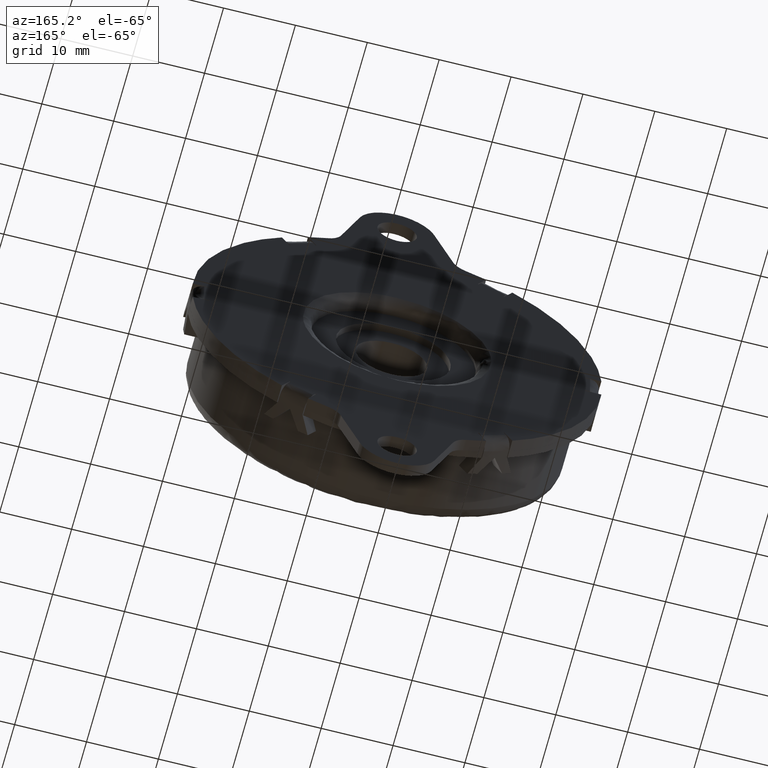
[diagram: clean part render]
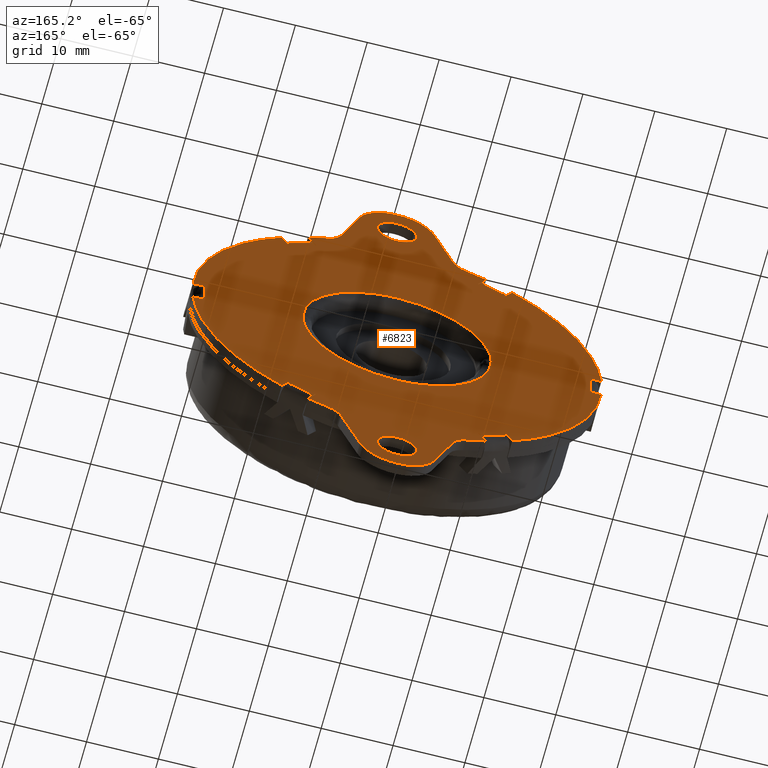
[diagram: same view with one face highlighted and labeled with its STEP entity id]
A machine part, auxiliary view. The second image highlights one B-rep face of the part: STEP entity #6823.
In plain terms, the highlighted face is a freeform B-spline surface patch.
Its self-contained STEP definition (entity closure, byte-faithful):
#3396=CARTESIAN_POINT('',(-2.741522667755105,0.0,-33.784237486608703));
#3397=VERTEX_POINT('',#3396);
#3403=CARTESIAN_POINT('',(0.0,0.0,-31.250000000000000));
#3404=VERTEX_POINT('',#3403);
#3405=CARTESIAN_POINT('',(0.0,0.0,-31.250000000000000));
#3406=CARTESIAN_POINT('',(-2.542073851930114,0.0,-31.250000000000004));
#3407=CARTESIAN_POINT('',(-2.741522667755106,0.0,-33.784237486608703));
#3415=(BOUNDED_CURVE()B_SPLINE_CURVE(2,(#3405,#3406,#3407),.UNSPECIFIED.,.F.,.U.)B_SPLINE_CURVE_WITH_KNOTS((3,3),(0.0,0.236331300624030),.UNSPECIFIED.)CURVE()GEOMETRIC_REPRESENTATION_ITEM()RATIONAL_B_SPLINE_CURVE((1.0,0.723120658615432,0.969723356153583))REPRESENTATION_ITEM(''));
#3416=EDGE_CURVE('',#3404,#3397,#3415,.T.);
#3418=CARTESIAN_POINT('',(2.741522667755104,0.0,-34.215762513391297));
#3419=VERTEX_POINT('',#3418);
#3420=CARTESIAN_POINT('',(2.741522667755105,0.0,-34.215762513391297));
#3421=CARTESIAN_POINT('',(2.750000000000000,0.0,-34.108047794341282));
#3422=CARTESIAN_POINT('',(2.750000000000000,0.0,-34.0));
#3423=CARTESIAN_POINT('',(2.750000000000000,0.0,-31.250000000000000));
#3424=CARTESIAN_POINT('',(0.0,0.0,-31.250000000000000));
#3432=(BOUNDED_CURVE()B_SPLINE_CURVE(2,(#3420,#3421,#3422,#3423,#3424),.UNSPECIFIED.,.F.,.U.)B_SPLINE_CURVE_WITH_KNOTS((3,2,3),(0.736331300624030,0.750000000000000,1.0),.UNSPECIFIED.)CURVE()GEOMETRIC_REPRESENTATION_ITEM()RATIONAL_B_SPLINE_CURVE((0.969723356153582,0.983986122571115,1.0,0.707106781186548,1.0))REPRESENTATION_ITEM(''));
#3433=EDGE_CURVE('',#3419,#3404,#3432,.T.);
#3509=CARTESIAN_POINT('',(0.0,0.0,-36.750000000000007));
#3510=VERTEX_POINT('',#3509);
#3511=CARTESIAN_POINT('',(0.0,0.0,-36.750000000000007));
#3512=CARTESIAN_POINT('',(2.542073851930109,0.0,-36.750000000000007));
#3513=CARTESIAN_POINT('',(2.741522667755105,0.0,-34.215762513391297));
#3521=(BOUNDED_CURVE()B_SPLINE_CURVE(2,(#3511,#3512,#3513),.UNSPECIFIED.,.F.,.U.)B_SPLINE_CURVE_WITH_KNOTS((3,3),(0.500000000000000,0.736331300624030),.UNSPECIFIED.)CURVE()GEOMETRIC_REPRESENTATION_ITEM()RATIONAL_B_SPLINE_CURVE((1.0,0.723120658615433,0.969723356153582))REPRESENTATION_ITEM(''));
#3522=EDGE_CURVE('',#3510,#3419,#3521,.T.);
#3524=CARTESIAN_POINT('',(-2.741522667755106,0.0,-33.784237486608703));
#3525=CARTESIAN_POINT('',(-2.750000000000001,0.0,-33.891952205658725));
#3526=CARTESIAN_POINT('',(-2.750000000000000,0.0,-34.0));
#3527=CARTESIAN_POINT('',(-2.750000000000000,0.0,-36.750000000000007));
#3528=CARTESIAN_POINT('',(0.0,0.0,-36.750000000000007));
#3536=(BOUNDED_CURVE()B_SPLINE_CURVE(2,(#3524,#3525,#3526,#3527,#3528),.UNSPECIFIED.,.F.,.U.)B_SPLINE_CURVE_WITH_KNOTS((3,2,3),(0.236331300624030,0.250000000000000,0.500000000000000),.UNSPECIFIED.)CURVE()GEOMETRIC_REPRESENTATION_ITEM()RATIONAL_B_SPLINE_CURVE((0.969723356153582,0.983986122571115,1.0,0.707106781186548,1.0))REPRESENTATION_ITEM(''));
#3537=EDGE_CURVE('',#3397,#3510,#3536,.T.);
#3726=CARTESIAN_POINT('',(-2.741522667755105,0.0,34.215762513391297));
#3727=VERTEX_POINT('',#3726);
#3733=CARTESIAN_POINT('',(0.0,0.0,36.750000000000007));
#3734=VERTEX_POINT('',#3733);
#3735=CARTESIAN_POINT('',(0.0,0.0,36.750000000000007));
#3736=CARTESIAN_POINT('',(-2.542073851930109,0.0,36.750000000000007));
#3737=CARTESIAN_POINT('',(-2.741522667755105,0.0,34.215762513391297));
#3745=(BOUNDED_CURVE()B_SPLINE_CURVE(2,(#3735,#3736,#3737),.UNSPECIFIED.,.F.,.U.)B_SPLINE_CURVE_WITH_KNOTS((3,3),(0.0,0.236331300624030),.UNSPECIFIED.)CURVE()GEOMETRIC_REPRESENTATION_ITEM()RATIONAL_B_SPLINE_CURVE((1.0,0.723120658615433,0.969723356153582))REPRESENTATION_ITEM(''));
#3746=EDGE_CURVE('',#3734,#3727,#3745,.T.);
#3748=CARTESIAN_POINT('',(2.741522667755105,0.0,33.784237486608703));
#3749=VERTEX_POINT('',#3748);
#3750=CARTESIAN_POINT('',(2.741522667755106,0.0,33.784237486608703));
#3751=CARTESIAN_POINT('',(2.750000000000000,0.0,33.891952205658718));
#3752=CARTESIAN_POINT('',(2.750000000000000,0.0,34.0));
#3753=CARTESIAN_POINT('',(2.750000000000000,0.0,36.750000000000007));
#3754=CARTESIAN_POINT('',(0.0,0.0,36.750000000000007));
#3762=(BOUNDED_CURVE()B_SPLINE_CURVE(2,(#3750,#3751,#3752,#3753,#3754),.UNSPECIFIED.,.F.,.U.)B_SPLINE_CURVE_WITH_KNOTS((3,2,3),(0.736331300624031,0.750000000000000,1.0),.UNSPECIFIED.)CURVE()GEOMETRIC_REPRESENTATION_ITEM()RATIONAL_B_SPLINE_CURVE((0.969723356153583,0.983986122571116,1.0,0.707106781186548,1.0))REPRESENTATION_ITEM(''));
#3763=EDGE_CURVE('',#3749,#3734,#3762,.T.);
#3839=CARTESIAN_POINT('',(0.0,0.0,31.250000000000000));
#3840=VERTEX_POINT('',#3839);
#3841=CARTESIAN_POINT('',(0.0,0.0,31.250000000000000));
#3842=CARTESIAN_POINT('',(2.542073851930109,0.0,31.249999999999993));
#3843=CARTESIAN_POINT('',(2.741522667755105,0.0,33.784237486608696));
#3851=(BOUNDED_CURVE()B_SPLINE_CURVE(2,(#3841,#3842,#3843),.UNSPECIFIED.,.F.,.U.)B_SPLINE_CURVE_WITH_KNOTS((3,3),(0.500000000000000,0.736331300624030),.UNSPECIFIED.)CURVE()GEOMETRIC_REPRESENTATION_ITEM()RATIONAL_B_SPLINE_CURVE((1.0,0.723120658615433,0.969723356153582))REPRESENTATION_ITEM(''));
#3852=EDGE_CURVE('',#3840,#3749,#3851,.T.);
#3854=CARTESIAN_POINT('',(-2.741522667755106,0.0,34.215762513391297));
#3855=CARTESIAN_POINT('',(-2.750000000000000,0.0,34.108047794341282));
#3856=CARTESIAN_POINT('',(-2.750000000000000,0.0,34.0));
#3857=CARTESIAN_POINT('',(-2.750000000000000,0.0,31.250000000000000));
#3858=CARTESIAN_POINT('',(0.0,0.0,31.250000000000000));
#3866=(BOUNDED_CURVE()B_SPLINE_CURVE(2,(#3854,#3855,#3856,#3857,#3858),.UNSPECIFIED.,.F.,.U.)B_SPLINE_CURVE_WITH_KNOTS((3,2,3),(0.236331300624030,0.250000000000000,0.500000000000000),.UNSPECIFIED.)CURVE()GEOMETRIC_REPRESENTATION_ITEM()RATIONAL_B_SPLINE_CURVE((0.969723356153582,0.983986122571115,1.0,0.707106781186548,1.0))REPRESENTATION_ITEM(''));
#3867=EDGE_CURVE('',#3727,#3840,#3866,.T.);
#4188=CARTESIAN_POINT('',(-13.099999999973630,-2.285745E-014,-8.874474E-016));
#4189=VERTEX_POINT('',#4188);
#4203=CARTESIAN_POINT('',(0.0,-4.510281E-014,13.100000000000000));
#4204=VERTEX_POINT('',#4203);
#4205=CARTESIAN_POINT('',(0.0,-4.510281E-014,13.100000000000000));
#4206=CARTESIAN_POINT('',(-13.099999999986814,-1.142873E-014,13.100000000000000));
#4207=CARTESIAN_POINT('',(-13.099999999973630,-2.285745E-014,-8.874474E-016));
#4215=(BOUNDED_CURVE()B_SPLINE_CURVE(2,(#4205,#4206,#4207),.UNSPECIFIED.,.F.,.U.)B_SPLINE_CURVE_WITH_KNOTS((3,3),(0.0,0.250000000000000),.UNSPECIFIED.)CURVE()GEOMETRIC_REPRESENTATION_ITEM()RATIONAL_B_SPLINE_CURVE((1.0,0.707106781186547,1.0))REPRESENTATION_ITEM(''));
#4216=EDGE_CURVE('',#4204,#4189,#4215,.T.);
#4218=CARTESIAN_POINT('',(13.099999999973630,-2.285745E-014,5.932891E-017));
#4219=VERTEX_POINT('',#4218);
#4220=CARTESIAN_POINT('',(13.099999999973630,-2.285745E-014,5.932891E-017));
#4221=CARTESIAN_POINT('',(13.099999999986814,-3.398013E-014,13.100000000000000));
#4222=CARTESIAN_POINT('',(0.0,-4.510281E-014,13.100000000000000));
#4230=(BOUNDED_CURVE()B_SPLINE_CURVE(2,(#4220,#4221,#4222),.UNSPECIFIED.,.F.,.U.)B_SPLINE_CURVE_WITH_KNOTS((3,3),(0.750000000000000,1.0),.UNSPECIFIED.)CURVE()GEOMETRIC_REPRESENTATION_ITEM()RATIONAL_B_SPLINE_CURVE((1.0,0.707106781186547,1.0))REPRESENTATION_ITEM(''));
#4231=EDGE_CURVE('',#4219,#4204,#4230,.T.);
#4283=CARTESIAN_POINT('',(0.0,0.0,-13.100000000000000));
#4284=VERTEX_POINT('',#4283);
#4285=CARTESIAN_POINT('',(0.0,0.0,-13.100000000000000));
#4286=CARTESIAN_POINT('',(13.099999999986814,-1.142873E-014,-13.100000000000000));
#4287=CARTESIAN_POINT('',(13.099999999973630,-2.285745E-014,5.932891E-017));
#4295=(BOUNDED_CURVE()B_SPLINE_CURVE(2,(#4285,#4286,#4287),.UNSPECIFIED.,.F.,.U.)B_SPLINE_CURVE_WITH_KNOTS((3,3),(0.500000000000000,0.750000000000000),.UNSPECIFIED.)CURVE()GEOMETRIC_REPRESENTATION_ITEM()RATIONAL_B_SPLINE_CURVE((1.0,0.707106781186547,1.0))REPRESENTATION_ITEM(''));
#4296=EDGE_CURVE('',#4284,#4219,#4295,.T.);
#4298=CARTESIAN_POINT('',(-13.099999999973630,-2.285745E-014,-8.874474E-016));
#4299=CARTESIAN_POINT('',(-13.099999999986814,-1.142873E-014,-13.100000000000000));
#4300=CARTESIAN_POINT('',(0.0,0.0,-13.100000000000000));
#4308=(BOUNDED_CURVE()B_SPLINE_CURVE(2,(#4298,#4299,#4300),.UNSPECIFIED.,.F.,.U.)B_SPLINE_CURVE_WITH_KNOTS((3,3),(0.250000000000000,0.500000000000000),.UNSPECIFIED.)CURVE()GEOMETRIC_REPRESENTATION_ITEM()RATIONAL_B_SPLINE_CURVE((1.0,0.707106781186547,1.0))REPRESENTATION_ITEM(''));
#4309=EDGE_CURVE('',#4189,#4284,#4308,.T.);
#4396=CARTESIAN_POINT('',(-7.808637704701380,0.0,-28.626958831556649));
#4397=VERTEX_POINT('',#4396);
#4398=CARTESIAN_POINT('',(-5.168339999999890,0.0,-35.881100000000004));
#4399=VERTEX_POINT('',#4398);
#4400=CARTESIAN_POINT('',(-7.808637704701380,0.0,-28.626958831556649));
#4401=CARTESIAN_POINT('',(-5.168339999999890,0.0,-35.881100000000004));
#4402=QUASI_UNIFORM_CURVE('',1,(#4400,#4401),.UNSPECIFIED.,.F.,.U.);
#4403=EDGE_CURVE('',#4397,#4399,#4402,.T.);
#4445=CARTESIAN_POINT('',(5.172314241144200,0.0,-35.870070958775862));
#4446=VERTEX_POINT('',#4445);
#4447=CARTESIAN_POINT('',(-5.168339999999890,0.0,-35.881100000000004));
#4448=CARTESIAN_POINT('',(-5.024652273700401,0.0,-36.276114147201604));
#4449=CARTESIAN_POINT('',(-4.740690491425778,0.0,-36.843677238695747));
#4450=CARTESIAN_POINT('',(-4.157418288174062,0.0,-37.634200963584483));
#4451=CARTESIAN_POINT('',(-3.583367725503399,0.0,-38.204709192838742));
#4452=CARTESIAN_POINT('',(-2.826110716457535,0.0,-38.745173436579343));
#4453=CARTESIAN_POINT('',(-2.023339460251995,0.0,-39.145180395965149));
#4454=CARTESIAN_POINT('',(-0.994443680907570,0.0,-39.447256485861082));
#4455=CARTESIAN_POINT('',(0.041914493219847,0.0,-39.535461591496102));
#4456=CARTESIAN_POINT('',(1.072280466813882,0.0,-39.420646084237347));
#4457=CARTESIAN_POINT('',(1.883645554430638,0.0,-39.188992166144907));
#4458=CARTESIAN_POINT('',(2.650612571649274,0.0,-38.840779731831702));
#4459=CARTESIAN_POINT('',(3.405389431110072,0.0,-38.357605885012561));
#4460=CARTESIAN_POINT('',(4.113098402618404,0.0,-37.696984613558627));
#4461=CARTESIAN_POINT('',(4.741283358954179,0.0,-36.850242764698777));
#4462=CARTESIAN_POINT('',(5.041353084416213,0.0,-36.232443845167651));
#4463=CARTESIAN_POINT('',(5.172314241144200,0.0,-35.870070958775862));
#4464=B_SPLINE_CURVE_WITH_KNOTS('',3,(#4447,#4448,#4449,#4450,#4451,#4452,#4453,#4454,#4455,#4456,#4457,#4458,#4459,#4460,#4461,#4462,#4463),.UNSPECIFIED.,.F.,.U.,(4,1,1,1,1,1,1,1,1,1,1,1,1,1,4),(0.000000164549167,1.260986827615415,1.891503313839763,2.942370109790785,3.677975447672797,4.676285744535443,5.622064577821482,6.883042678279746,7.776242134699047,8.722024261193226,9.405091572457000,10.298315993828981,11.401724854001490,12.294929739515300,13.450858885865840),.UNSPECIFIED.);
#4465=EDGE_CURVE('',#4399,#4446,#4464,.T.);
#4503=CARTESIAN_POINT('',(7.808582423385880,0.0,-28.626980816584400));
#4504=VERTEX_POINT('',#4503);
#4505=CARTESIAN_POINT('',(5.172314241144200,0.0,-35.870070958775862));
#4506=CARTESIAN_POINT('',(7.808582423385880,0.0,-28.626980816584400));
#4507=QUASI_UNIFORM_CURVE('',1,(#4505,#4506),.UNSPECIFIED.,.F.,.U.);
#4508=EDGE_CURVE('',#4446,#4504,#4507,.T.);
#4540=CARTESIAN_POINT('',(9.615502280273310,0.0,-26.828941758818200));
#4541=VERTEX_POINT('',#4540);
#4542=CARTESIAN_POINT('',(9.615502280273317,0.0,-26.828941758818210));
#4543=CARTESIAN_POINT('',(8.290123113941906,0.0,-27.303958124005170));
#4544=CARTESIAN_POINT('',(7.808582423385887,0.0,-28.626980816584400));
#4552=(BOUNDED_CURVE()B_SPLINE_CURVE(2,(#4542,#4543,#4544),.UNSPECIFIED.,.F.,.U.)CURVE()GEOMETRIC_REPRESENTATION_ITEM()QUASI_UNIFORM_CURVE()RATIONAL_B_SPLINE_CURVE((1.0,0.905263868492576,1.0))REPRESENTATION_ITEM(''));
#4553=EDGE_CURVE('',#4541,#4504,#4552,.T.);
#4593=CARTESIAN_POINT('',(-9.615551474098950,0.0,-26.828924127682651));
#4594=VERTEX_POINT('',#4593);
#4595=CARTESIAN_POINT('',(-7.808637704701393,0.0,-28.626958831556649));
#4596=CARTESIAN_POINT('',(-8.290177864974256,0.0,-27.303941243549836));
#4597=CARTESIAN_POINT('',(-9.615551474098957,0.0,-26.828924127682669));
#4605=(BOUNDED_CURVE()B_SPLINE_CURVE(2,(#4595,#4596,#4597),.UNSPECIFIED.,.F.,.U.)CURVE()GEOMETRIC_REPRESENTATION_ITEM()QUASI_UNIFORM_CURVE()RATIONAL_B_SPLINE_CURVE((1.0,0.905264446225925,1.0))REPRESENTATION_ITEM(''));
#4606=EDGE_CURVE('',#4397,#4594,#4605,.T.);
#6172=CARTESIAN_POINT('',(-31.261936542538830,0.0,43.446080484400483));
#6173=CARTESIAN_POINT('',(31.261938067241960,0.0,43.446080484400483));
#6174=CARTESIAN_POINT('',(-31.261936542538830,0.0,-43.446048422877659));
#6175=CARTESIAN_POINT('',(31.261938067241960,0.0,-43.446048422877659));
#6176=B_SPLINE_SURFACE_WITH_KNOTS('',1,1,((#6172,#6174),(#6173,#6175)),.UNSPECIFIED.,.F.,.F.,.U.,(2,2),(2,2),(0.0,62.523874609780790),(0.0,86.892128907278135),.UNSPECIFIED.);
#6177=CARTESIAN_POINT('',(14.793827604773620,0.0,-21.623661049883300));
#6178=VERTEX_POINT('',#6177);
#6179=CARTESIAN_POINT('',(15.144824569919050,-1.136868E-013,-22.231605626818251));
#6180=VERTEX_POINT('',#6179);
#6181=CARTESIAN_POINT('',(14.793827604773620,0.0,-21.623661049883300));
#6182=CARTESIAN_POINT('',(15.144824569919050,-1.136868E-013,-22.231605626818251));
#6183=QUASI_UNIFORM_CURVE('',1,(#6181,#6182),.UNSPECIFIED.,.F.,.U.);
#6184=EDGE_CURVE('',#6178,#6180,#6183,.T.);
#6185=ORIENTED_EDGE('',*,*,#6184,.T.);
#6186=CARTESIAN_POINT('',(11.680722954781340,0.0,-24.231605626818151));
#6187=VERTEX_POINT('',#6186);
#6188=CARTESIAN_POINT('',(15.144824569919050,-1.136868E-013,-22.231605626818251));
#6189=CARTESIAN_POINT('',(13.487329556529524,0.0,-23.360740050335476));
#6190=CARTESIAN_POINT('',(11.680722954781331,0.0,-24.231605626818141));
#6198=(BOUNDED_CURVE()B_SPLINE_CURVE(2,(#6188,#6189,#6190),.UNSPECIFIED.,.F.,.U.)CURVE()GEOMETRIC_REPRESENTATION_ITEM()QUASI_UNIFORM_CURVE()RATIONAL_B_SPLINE_CURVE((1.0,0.997232249988890,1.0))REPRESENTATION_ITEM(''));
#6199=EDGE_CURVE('',#6180,#6187,#6198,.T.);
#6200=ORIENTED_EDGE('',*,*,#6199,.T.);
#6201=CARTESIAN_POINT('',(11.329725979473920,0.0,-23.623661032281500));
#6202=VERTEX_POINT('',#6201);
#6203=CARTESIAN_POINT('',(11.329725979473920,0.0,-23.623661032281500));
#6204=CARTESIAN_POINT('',(11.680722954781340,0.0,-24.231605626818151));
#6205=QUASI_UNIFORM_CURVE('',1,(#6203,#6204),.UNSPECIFIED.,.F.,.U.);
#6206=EDGE_CURVE('',#6202,#6187,#6205,.T.);
#6207=ORIENTED_EDGE('',*,*,#6206,.F.);
#6208=CARTESIAN_POINT('',(11.239199197552059,0.0,-23.666864046547150));
#6209=VERTEX_POINT('',#6208);
#6210=CARTESIAN_POINT('',(11.239199197552059,0.0,-23.666864046547150));
#6211=CARTESIAN_POINT('',(11.284503939593124,0.0,-23.645349185733114));
#6212=CARTESIAN_POINT('',(11.329725979473920,0.0,-23.623661032281500));
#6220=(BOUNDED_CURVE()B_SPLINE_CURVE(2,(#6210,#6211,#6212),.UNSPECIFIED.,.F.,.U.)CURVE()GEOMETRIC_REPRESENTATION_ITEM()QUASI_UNIFORM_CURVE()RATIONAL_B_SPLINE_CURVE((1.0,0.999998167791951,1.0))REPRESENTATION_ITEM(''));
#6221=EDGE_CURVE('',#6209,#6202,#6220,.T.);
#6222=ORIENTED_EDGE('',*,*,#6221,.F.);
#6223=CARTESIAN_POINT('',(12.392609790845301,0.0,-25.664629796119151));
#6224=VERTEX_POINT('',#6223);
#6225=CARTESIAN_POINT('',(11.239199197552059,0.0,-23.666864046547150));
#6226=CARTESIAN_POINT('',(12.392609790845301,0.0,-25.664629796119151));
#6227=QUASI_UNIFORM_CURVE('',1,(#6225,#6226),.UNSPECIFIED.,.F.,.U.);
#6228=EDGE_CURVE('',#6209,#6224,#6227,.T.);
#6229=ORIENTED_EDGE('',*,*,#6228,.T.);
#6230=CARTESIAN_POINT('',(9.615502280273299,0.0,-26.828941758818200));
#6231=CARTESIAN_POINT('',(11.034854278091476,0.0,-26.320245497362212));
#6232=CARTESIAN_POINT('',(12.392609790845279,0.0,-25.664629796119129));
#6240=(BOUNDED_CURVE()B_SPLINE_CURVE(2,(#6230,#6231,#6232),.UNSPECIFIED.,.F.,.U.)CURVE()GEOMETRIC_REPRESENTATION_ITEM()QUASI_UNIFORM_CURVE()RATIONAL_B_SPLINE_CURVE((1.0,0.998603526551181,1.0))REPRESENTATION_ITEM(''));
#6241=EDGE_CURVE('',#4541,#6224,#6240,.T.);
#6242=ORIENTED_EDGE('',*,*,#6241,.F.);
#6243=ORIENTED_EDGE('',*,*,#4553,.T.);
#6244=ORIENTED_EDGE('',*,*,#4508,.F.);
#6245=ORIENTED_EDGE('',*,*,#4465,.F.);
#6246=ORIENTED_EDGE('',*,*,#4403,.F.);
#6247=ORIENTED_EDGE('',*,*,#4606,.T.);
#6248=CARTESIAN_POINT('',(-12.392609790845260,0.0,-25.664629796119151));
#6249=VERTEX_POINT('',#6248);
#6250=CARTESIAN_POINT('',(-12.392609790845260,0.0,-25.664629796119140));
#6251=CARTESIAN_POINT('',(-11.034877873418155,0.0,-26.320234103951179));
#6252=CARTESIAN_POINT('',(-9.615551474098961,0.0,-26.828924127682669));
#6260=(BOUNDED_CURVE()B_SPLINE_CURVE(2,(#6250,#6251,#6252),.UNSPECIFIED.,.F.,.U.)CURVE()GEOMETRIC_REPRESENTATION_ITEM()QUASI_UNIFORM_CURVE()RATIONAL_B_SPLINE_CURVE((1.0,0.998603574985490,1.0))REPRESENTATION_ITEM(''));
#6261=EDGE_CURVE('',#6249,#4594,#6260,.T.);
#6262=ORIENTED_EDGE('',*,*,#6261,.F.);
#6263=CARTESIAN_POINT('',(-11.239199197552059,0.0,-23.666864046547150));
#6264=VERTEX_POINT('',#6263);
#6265=CARTESIAN_POINT('',(-12.392609790845260,0.0,-25.664629796119151));
#6266=CARTESIAN_POINT('',(-11.239199197552059,0.0,-23.666864046547150));
#6267=QUASI_UNIFORM_CURVE('',1,(#6265,#6266),.UNSPECIFIED.,.F.,.U.);
#6268=EDGE_CURVE('',#6249,#6264,#6267,.T.);
#6269=ORIENTED_EDGE('',*,*,#6268,.T.);
#6270=CARTESIAN_POINT('',(-11.329725989636200,0.0,-23.623661049883101));
#6271=VERTEX_POINT('',#6270);
#6272=CARTESIAN_POINT('',(-11.329725989636190,0.0,-23.623661049883090));
#6273=CARTESIAN_POINT('',(-11.284503944675823,0.0,-23.645349194536461));
#6274=CARTESIAN_POINT('',(-11.239199197552059,0.0,-23.666864046547150));
#6282=(BOUNDED_CURVE()B_SPLINE_CURVE(2,(#6272,#6273,#6274),.UNSPECIFIED.,.F.,.U.)CURVE()GEOMETRIC_REPRESENTATION_ITEM()QUASI_UNIFORM_CURVE()RATIONAL_B_SPLINE_CURVE((1.0,0.999998167791895,1.0))REPRESENTATION_ITEM(''));
#6283=EDGE_CURVE('',#6271,#6264,#6282,.T.);
#6284=ORIENTED_EDGE('',*,*,#6283,.F.);
#6285=CARTESIAN_POINT('',(-11.680722954782119,-1.136868E-013,-24.231605626817700));
#6286=VERTEX_POINT('',#6285);
#6287=CARTESIAN_POINT('',(-11.329725989636200,0.0,-23.623661049883101));
#6288=CARTESIAN_POINT('',(-11.680722954782119,-1.136868E-013,-24.231605626817700));
#6289=QUASI_UNIFORM_CURVE('',1,(#6287,#6288),.UNSPECIFIED.,.F.,.U.);
#6290=EDGE_CURVE('',#6271,#6286,#6289,.T.);
#6291=ORIENTED_EDGE('',*,*,#6290,.T.);
#6292=CARTESIAN_POINT('',(-15.144824569919800,0.0,-22.231605626817800));
#6293=VERTEX_POINT('',#6292);
#6294=CARTESIAN_POINT('',(-11.680722954782119,-1.136868E-013,-24.231605626817700));
#6295=CARTESIAN_POINT('',(-13.487329556530293,0.0,-23.360740050335028));
#6296=CARTESIAN_POINT('',(-15.144824569919759,0.0,-22.231605626817750));
#6304=(BOUNDED_CURVE()B_SPLINE_CURVE(2,(#6294,#6295,#6296),.UNSPECIFIED.,.F.,.U.)CURVE()GEOMETRIC_REPRESENTATION_ITEM()QUASI_UNIFORM_CURVE()RATIONAL_B_SPLINE_CURVE((1.0,0.997232249988891,1.0))REPRESENTATION_ITEM(''));
#6305=EDGE_CURVE('',#6286,#6293,#6304,.T.);
#6306=ORIENTED_EDGE('',*,*,#6305,.T.);
#6307=CARTESIAN_POINT('',(-14.793827594611320,0.0,-21.623661032281699));
#6308=VERTEX_POINT('',#6307);
#6309=CARTESIAN_POINT('',(-14.793827594611320,0.0,-21.623661032281699));
#6310=CARTESIAN_POINT('',(-15.144824569919800,0.0,-22.231605626817800));
#6311=QUASI_UNIFORM_CURVE('',1,(#6309,#6310),.UNSPECIFIED.,.F.,.U.);
#6312=EDGE_CURVE('',#6308,#6293,#6311,.T.);
#6313=ORIENTED_EDGE('',*,*,#6312,.F.);
#6314=CARTESIAN_POINT('',(-14.876505893446360,0.0,-21.566864046547352));
#6315=VERTEX_POINT('',#6314);
#6316=CARTESIAN_POINT('',(-14.876505893446360,0.0,-21.566864046547352));
#6317=CARTESIAN_POINT('',(-14.835221106402177,0.0,-21.595341673659668));
#6318=CARTESIAN_POINT('',(-14.793827594611320,0.0,-21.623661032281699));
#6326=(BOUNDED_CURVE()B_SPLINE_CURVE(2,(#6316,#6317,#6318),.UNSPECIFIED.,.F.,.U.)CURVE()GEOMETRIC_REPRESENTATION_ITEM()QUASI_UNIFORM_CURVE()RATIONAL_B_SPLINE_CURVE((1.0,0.999998167791951,1.0))REPRESENTATION_ITEM(''));
#6327=EDGE_CURVE('',#6315,#6308,#6326,.T.);
#6328=ORIENTED_EDGE('',*,*,#6327,.F.);
#6329=CARTESIAN_POINT('',(-16.029916486739548,0.0,-23.564629796119348));
#6330=VERTEX_POINT('',#6329);
#6331=CARTESIAN_POINT('',(-14.876505893446360,0.0,-21.566864046547352));
#6332=CARTESIAN_POINT('',(-16.029916486739548,0.0,-23.564629796119348));
#6333=QUASI_UNIFORM_CURVE('',1,(#6331,#6332),.UNSPECIFIED.,.F.,.U.);
#6334=EDGE_CURVE('',#6315,#6330,#6333,.T.);
#6335=ORIENTED_EDGE('',*,*,#6334,.T.);
#6336=CARTESIAN_POINT('',(-28.422526277584851,0.0,-2.099999999999800));
#6337=VERTEX_POINT('',#6336);
#6338=CARTESIAN_POINT('',(-28.422526277584840,0.0,-2.099999999999787));
#6339=CARTESIAN_POINT('',(-27.408505005214575,0.0,-15.824307742845855));
#6340=CARTESIAN_POINT('',(-16.029916486739548,0.0,-23.564629796119348));
#6348=(BOUNDED_CURVE()B_SPLINE_CURVE(2,(#6338,#6339,#6340),.UNSPECIFIED.,.F.,.U.)CURVE()GEOMETRIC_REPRESENTATION_ITEM()QUASI_UNIFORM_CURVE()RATIONAL_B_SPLINE_CURVE((1.0,0.900513326179618,1.0))REPRESENTATION_ITEM(''));
#6349=EDGE_CURVE('',#6337,#6330,#6348,.T.);
#6350=ORIENTED_EDGE('',*,*,#6349,.F.);
#6351=CARTESIAN_POINT('',(-26.115705090998450,0.0,-2.099999999999800));
#6352=VERTEX_POINT('',#6351);
#6353=CARTESIAN_POINT('',(-28.422526277584851,0.0,-2.099999999999800));
#6354=CARTESIAN_POINT('',(-26.115705090998450,0.0,-2.099999999999800));
#6355=QUASI_UNIFORM_CURVE('',1,(#6353,#6354),.UNSPECIFIED.,.F.,.U.);
#6356=EDGE_CURVE('',#6337,#6352,#6355,.T.);
#6357=ORIENTED_EDGE('',*,*,#6356,.T.);
#6358=CARTESIAN_POINT('',(-26.123553594409799,0.0,-1.999999999999800));
#6359=VERTEX_POINT('',#6358);
#6360=CARTESIAN_POINT('',(-26.123553594409810,0.0,-1.999999999999798));
#6361=CARTESIAN_POINT('',(-26.119725056160448,0.0,-2.050007512072567));
#6362=CARTESIAN_POINT('',(-26.115705090998439,0.0,-2.099999999999801));
#6370=(BOUNDED_CURVE()B_SPLINE_CURVE(2,(#6360,#6361,#6362),.UNSPECIFIED.,.F.,.U.)CURVE()GEOMETRIC_REPRESENTATION_ITEM()QUASI_UNIFORM_CURVE()RATIONAL_B_SPLINE_CURVE((1.0,0.999998167791895,1.0))REPRESENTATION_ITEM(''));
#6371=EDGE_CURVE('',#6359,#6352,#6370,.T.);
#6372=ORIENTED_EDGE('',*,*,#6371,.F.);
#6373=CARTESIAN_POINT('',(-26.825547524701250,-1.136868E-013,-1.999999999999515));
#6374=VERTEX_POINT('',#6373);
#6375=CARTESIAN_POINT('',(-26.123553594409799,0.0,-1.999999999999800));
#6376=CARTESIAN_POINT('',(-26.825547524701250,-1.136868E-013,-1.999999999999515));
#6377=QUASI_UNIFORM_CURVE('',1,(#6375,#6376),.UNSPECIFIED.,.F.,.U.);
#6378=EDGE_CURVE('',#6359,#6374,#6377,.T.);
#6379=ORIENTED_EDGE('',*,*,#6378,.T.);
#6380=CARTESIAN_POINT('',(-26.825547524701101,0.0,2.000000000000400));
#6381=VERTEX_POINT('',#6380);
#6382=CARTESIAN_POINT('',(-26.825547524701250,-1.136868E-013,-1.999999999999515));
#6383=CARTESIAN_POINT('',(-26.974659113059847,0.0,4.562323E-013));
#6384=CARTESIAN_POINT('',(-26.825547524701118,0.0,2.000000000000400));
#6392=(BOUNDED_CURVE()B_SPLINE_CURVE(2,(#6382,#6383,#6384),.UNSPECIFIED.,.F.,.U.)CURVE()GEOMETRIC_REPRESENTATION_ITEM()QUASI_UNIFORM_CURVE()RATIONAL_B_SPLINE_CURVE((1.0,0.997232249988890,1.0))REPRESENTATION_ITEM(''));
#6393=EDGE_CURVE('',#6374,#6381,#6392,.T.);
#6394=ORIENTED_EDGE('',*,*,#6393,.T.);
#6395=CARTESIAN_POINT('',(-26.123553574085250,0.0,1.999999999999800));
#6396=VERTEX_POINT('',#6395);
#6397=CARTESIAN_POINT('',(-26.123553574085250,0.0,1.999999999999800));
#6398=CARTESIAN_POINT('',(-26.825547524701101,0.0,2.000000000000400));
#6399=QUASI_UNIFORM_CURVE('',1,(#6397,#6398),.UNSPECIFIED.,.F.,.U.);
#6400=EDGE_CURVE('',#6396,#6381,#6399,.T.);
#6401=ORIENTED_EDGE('',*,*,#6400,.F.);
#6402=CARTESIAN_POINT('',(-26.115705090998450,0.0,2.099999999999810));
#6403=VERTEX_POINT('',#6402);
#6404=CARTESIAN_POINT('',(-26.115705090998450,0.0,2.099999999999810));
#6405=CARTESIAN_POINT('',(-26.119725045995178,0.0,2.050007512072735));
#6406=CARTESIAN_POINT('',(-26.123553574085250,0.0,1.999999999999800));
#6414=(BOUNDED_CURVE()B_SPLINE_CURVE(2,(#6404,#6405,#6406),.UNSPECIFIED.,.F.,.U.)CURVE()GEOMETRIC_REPRESENTATION_ITEM()QUASI_UNIFORM_CURVE()RATIONAL_B_SPLINE_CURVE((1.0,0.999998167791951,1.0))REPRESENTATION_ITEM(''));
#6415=EDGE_CURVE('',#6403,#6396,#6414,.T.);
#6416=ORIENTED_EDGE('',*,*,#6415,.F.);
#6417=CARTESIAN_POINT('',(-28.422526277584851,0.0,2.099999999999795));
#6418=VERTEX_POINT('',#6417);
#6419=CARTESIAN_POINT('',(-26.115705090998450,0.0,2.099999999999810));
#6420=CARTESIAN_POINT('',(-28.422526277584851,0.0,2.099999999999795));
#6421=QUASI_UNIFORM_CURVE('',1,(#6419,#6420),.UNSPECIFIED.,.F.,.U.);
#6422=EDGE_CURVE('',#6403,#6418,#6421,.T.);
#6423=ORIENTED_EDGE('',*,*,#6422,.T.);
#6424=CARTESIAN_POINT('',(-16.029916486739602,0.0,23.564629796119299));
#6425=VERTEX_POINT('',#6424);
#6426=CARTESIAN_POINT('',(-16.029916486739609,0.0,23.564629796119309));
#6427=CARTESIAN_POINT('',(-27.408505005214575,0.0,15.824307742845813));
#6428=CARTESIAN_POINT('',(-28.422526277584840,0.0,2.099999999999791));
#6436=(BOUNDED_CURVE()B_SPLINE_CURVE(2,(#6426,#6427,#6428),.UNSPECIFIED.,.F.,.U.)CURVE()GEOMETRIC_REPRESENTATION_ITEM()QUASI_UNIFORM_CURVE()RATIONAL_B_SPLINE_CURVE((1.0,0.900513326179619,1.0))REPRESENTATION_ITEM(''));
#6437=EDGE_CURVE('',#6425,#6418,#6436,.T.);
#6438=ORIENTED_EDGE('',*,*,#6437,.F.);
#6439=CARTESIAN_POINT('',(-14.876505893446380,0.0,21.566864046547352));
#6440=VERTEX_POINT('',#6439);
#6441=CARTESIAN_POINT('',(-16.029916486739602,0.0,23.564629796119299));
#6442=CARTESIAN_POINT('',(-14.876505893446380,0.0,21.566864046547352));
#6443=QUASI_UNIFORM_CURVE('',1,(#6441,#6442),.UNSPECIFIED.,.F.,.U.);
#6444=EDGE_CURVE('',#6425,#6440,#6443,.T.);
#6445=ORIENTED_EDGE('',*,*,#6444,.T.);
#6446=CARTESIAN_POINT('',(-14.793827604773620,0.0,21.623661049883250));
#6447=VERTEX_POINT('',#6446);
#6448=CARTESIAN_POINT('',(-14.793827604773631,0.0,21.623661049883260));
#6449=CARTESIAN_POINT('',(-14.835221111485017,0.0,21.595341682462891));
#6450=CARTESIAN_POINT('',(-14.876505893446380,0.0,21.566864046547341));
#6458=(BOUNDED_CURVE()B_SPLINE_CURVE(2,(#6448,#6449,#6450),.UNSPECIFIED.,.F.,.U.)CURVE()GEOMETRIC_REPRESENTATION_ITEM()QUASI_UNIFORM_CURVE()RATIONAL_B_SPLINE_CURVE((1.0,0.999998167791895,1.0))REPRESENTATION_ITEM(''));
#6459=EDGE_CURVE('',#6447,#6440,#6458,.T.);
#6460=ORIENTED_EDGE('',*,*,#6459,.F.);
#6461=CARTESIAN_POINT('',(-15.144824569919050,-1.136868E-013,22.231605626818251));
#6462=VERTEX_POINT('',#6461);
#6463=CARTESIAN_POINT('',(-14.793827604773620,0.0,21.623661049883250));
#6464=CARTESIAN_POINT('',(-15.144824569919050,-1.136868E-013,22.231605626818251));
#6465=QUASI_UNIFORM_CURVE('',1,(#6463,#6464),.UNSPECIFIED.,.F.,.U.);
#6466=EDGE_CURVE('',#6447,#6462,#6465,.T.);
#6467=ORIENTED_EDGE('',*,*,#6466,.T.);
#6468=CARTESIAN_POINT('',(-11.680722954781400,0.0,24.231605626818151));
#6469=VERTEX_POINT('',#6468);
#6470=CARTESIAN_POINT('',(-15.144824569919050,-1.136868E-013,22.231605626818251));
#6471=CARTESIAN_POINT('',(-13.487329556529565,0.0,23.360740050335444));
#6472=CARTESIAN_POINT('',(-11.680722954781389,0.0,24.231605626818109));
#6480=(BOUNDED_CURVE()B_SPLINE_CURVE(2,(#6470,#6471,#6472),.UNSPECIFIED.,.F.,.U.)CURVE()GEOMETRIC_REPRESENTATION_ITEM()QUASI_UNIFORM_CURVE()RATIONAL_B_SPLINE_CURVE((1.0,0.997232249988890,1.0))REPRESENTATION_ITEM(''));
#6481=EDGE_CURVE('',#6462,#6469,#6480,.T.);
#6482=ORIENTED_EDGE('',*,*,#6481,.T.);
#6483=CARTESIAN_POINT('',(-11.329725979473920,0.0,23.623661032281500));
#6484=VERTEX_POINT('',#6483);
#6485=CARTESIAN_POINT('',(-11.329725979473920,0.0,23.623661032281500));
#6486=CARTESIAN_POINT('',(-11.680722954781400,0.0,24.231605626818151));
#6487=QUASI_UNIFORM_CURVE('',1,(#6485,#6486),.UNSPECIFIED.,.F.,.U.);
#6488=EDGE_CURVE('',#6484,#6469,#6487,.T.);
#6489=ORIENTED_EDGE('',*,*,#6488,.F.);
#6490=CARTESIAN_POINT('',(-11.239199197552081,0.0,23.666864046547150));
#6491=VERTEX_POINT('',#6490);
#6492=CARTESIAN_POINT('',(-11.239199197552081,0.0,23.666864046547150));
#6493=CARTESIAN_POINT('',(-11.284503939593224,0.0,23.645349185733071));
#6494=CARTESIAN_POINT('',(-11.329725979473920,0.0,23.623661032281500));
#6502=(BOUNDED_CURVE()B_SPLINE_CURVE(2,(#6492,#6493,#6494),.UNSPECIFIED.,.F.,.U.)CURVE()GEOMETRIC_REPRESENTATION_ITEM()QUASI_UNIFORM_CURVE()RATIONAL_B_SPLINE_CURVE((1.0,0.999998167791951,1.0))REPRESENTATION_ITEM(''));
#6503=EDGE_CURVE('',#6491,#6484,#6502,.T.);
#6504=ORIENTED_EDGE('',*,*,#6503,.F.);
#6505=CARTESIAN_POINT('',(-12.392609790845301,0.0,25.664629796119151));
#6506=VERTEX_POINT('',#6505);
#6507=CARTESIAN_POINT('',(-11.239199197552081,0.0,23.666864046547150));
#6508=CARTESIAN_POINT('',(-12.392609790845301,0.0,25.664629796119151));
#6509=QUASI_UNIFORM_CURVE('',1,(#6507,#6508),.UNSPECIFIED.,.F.,.U.);
#6510=EDGE_CURVE('',#6491,#6506,#6509,.T.);
#6511=ORIENTED_EDGE('',*,*,#6510,.T.);
#6512=CARTESIAN_POINT('',(-9.615555261173030,0.0,26.828922770385851));
#6513=VERTEX_POINT('',#6512);
#6514=CARTESIAN_POINT('',(-9.615555261173014,0.0,26.828922770385841));
#6515=CARTESIAN_POINT('',(-11.034879689850916,0.0,26.320233226855247));
#6516=CARTESIAN_POINT('',(-12.392609790845290,0.0,25.664629796119119));
#6524=(BOUNDED_CURVE()B_SPLINE_CURVE(2,(#6514,#6515,#6516),.UNSPECIFIED.,.F.,.U.)CURVE()GEOMETRIC_REPRESENTATION_ITEM()QUASI_UNIFORM_CURVE()RATIONAL_B_SPLINE_CURVE((1.0,0.998603578714061,1.0))REPRESENTATION_ITEM(''));
#6525=EDGE_CURVE('',#6513,#6506,#6524,.T.);
#6526=ORIENTED_EDGE('',*,*,#6525,.F.);
#6527=CARTESIAN_POINT('',(-7.808641435817790,0.0,28.626958580379501));
#6528=VERTEX_POINT('',#6527);
#6529=CARTESIAN_POINT('',(-9.615555261173020,0.0,26.828922770385820));
#6530=CARTESIAN_POINT('',(-8.290181198920715,0.0,27.303940259771558));
#6531=CARTESIAN_POINT('',(-7.808641435817780,0.0,28.626958580379501));
#6539=(BOUNDED_CURVE()B_SPLINE_CURVE(2,(#6529,#6530,#6531),.UNSPECIFIED.,.F.,.U.)CURVE()GEOMETRIC_REPRESENTATION_ITEM()QUASI_UNIFORM_CURVE()RATIONAL_B_SPLINE_CURVE((1.0,0.905264382096322,1.0))REPRESENTATION_ITEM(''));
#6540=EDGE_CURVE('',#6513,#6528,#6539,.T.);
#6541=ORIENTED_EDGE('',*,*,#6540,.T.);
#6542=CARTESIAN_POINT('',(-5.168340151186560,0.0,35.881119584618553));
#6543=VERTEX_POINT('',#6542);
#6544=CARTESIAN_POINT('',(-5.168340151186560,0.0,35.881119584618553));
#6545=CARTESIAN_POINT('',(-7.808641435817790,0.0,28.626958580379501));
#6546=QUASI_UNIFORM_CURVE('',1,(#6544,#6545),.UNSPECIFIED.,.F.,.U.);
#6547=EDGE_CURVE('',#6543,#6528,#6546,.T.);
#6548=ORIENTED_EDGE('',*,*,#6547,.F.);
#6549=CARTESIAN_POINT('',(5.168339999999880,0.0,35.881120000000003));
#6550=VERTEX_POINT('',#6549);
#6551=CARTESIAN_POINT('',(5.168339999999880,0.0,35.881120000000003));
#6552=CARTESIAN_POINT('',(5.048677110938089,0.0,36.210006538530422));
#6553=CARTESIAN_POINT('',(4.738706627474184,0.0,36.860659438464971));
#6554=CARTESIAN_POINT('',(4.087413112927053,0.0,37.735177191396289));
#6555=CARTESIAN_POINT('',(3.379811691448332,0.0,38.368589086936971));
#6556=CARTESIAN_POINT('',(2.643233430757037,0.0,38.843476432571883));
#6557=CARTESIAN_POINT('',(1.846906101522559,0.0,39.212861928187600));
#6558=CARTESIAN_POINT('',(0.740135760293737,0.0,39.499040937532889));
#6559=CARTESIAN_POINT('',(-0.406391745509760,0.0,39.526383463949138));
#6560=CARTESIAN_POINT('',(-1.562384180993681,0.0,39.308649349548297));
#6561=CARTESIAN_POINT('',(-2.413506842596479,0.0,38.971645480635367));
#6562=CARTESIAN_POINT('',(-3.253341886614314,0.0,38.463553747926568));
#6563=CARTESIAN_POINT('',(-4.046028411724347,0.0,37.793946419089153));
#6564=CARTESIAN_POINT('',(-4.735042224110976,0.0,36.877967061462833));
#6565=CARTESIAN_POINT('',(-5.060623153721496,0.0,36.177091574857428));
#6566=CARTESIAN_POINT('',(-5.168340151186560,0.0,35.881119584618553));
#6567=B_SPLINE_CURVE_WITH_KNOTS('',3,(#6551,#6552,#6553,#6554,#6555,#6556,#6557,#6558,#6559,#6560,#6561,#6562,#6563,#6564,#6565,#6566),.UNSPECIFIED.,.F.,.U.,(4,1,1,1,1,1,1,1,1,1,1,1,1,4),(0.000000163651260,1.049933025578920,2.152347734470045,3.254798015215286,3.884761218948611,4.777210422888913,5.879654448923832,7.297037011407434,8.189465268273334,9.396913699440077,10.026877354953291,11.129324800700299,12.494259858364000,13.439164289351170),.UNSPECIFIED.);
#6568=EDGE_CURVE('',#6550,#6543,#6567,.T.);
#6569=ORIENTED_EDGE('',*,*,#6568,.F.);
#6570=CARTESIAN_POINT('',(7.808641435817790,0.0,28.626958580379501));
#6571=VERTEX_POINT('',#6570);
#6572=CARTESIAN_POINT('',(7.808641435817790,0.0,28.626958580379501));
#6573=CARTESIAN_POINT('',(5.168339999999880,0.0,35.881120000000003));
#6574=QUASI_UNIFORM_CURVE('',1,(#6572,#6573),.UNSPECIFIED.,.F.,.U.);
#6575=EDGE_CURVE('',#6571,#6550,#6574,.T.);
#6576=ORIENTED_EDGE('',*,*,#6575,.F.);
#6577=CARTESIAN_POINT('',(9.615555261173020,0.0,26.828922770385851));
#6578=VERTEX_POINT('',#6577);
#6579=CARTESIAN_POINT('',(7.808641435817780,0.0,28.626958580379501));
#6580=CARTESIAN_POINT('',(8.290181198920713,0.0,27.303940259771565));
#6581=CARTESIAN_POINT('',(9.615555261173011,0.0,26.828922770385830));
#6589=(BOUNDED_CURVE()B_SPLINE_CURVE(2,(#6579,#6580,#6581),.UNSPECIFIED.,.F.,.U.)CURVE()GEOMETRIC_REPRESENTATION_ITEM()QUASI_UNIFORM_CURVE()RATIONAL_B_SPLINE_CURVE((1.0,0.905264382096323,1.0))REPRESENTATION_ITEM(''));
#6590=EDGE_CURVE('',#6571,#6578,#6589,.T.);
#6591=ORIENTED_EDGE('',*,*,#6590,.T.);
#6592=CARTESIAN_POINT('',(12.392609790845240,0.0,25.664629796119151));
#6593=VERTEX_POINT('',#6592);
#6594=CARTESIAN_POINT('',(12.392609790845251,0.0,25.664629796119140));
#6595=CARTESIAN_POINT('',(11.034879689850884,0.0,26.320233226855255));
#6596=CARTESIAN_POINT('',(9.615555261173022,0.0,26.828922770385841));
#6604=(BOUNDED_CURVE()B_SPLINE_CURVE(2,(#6594,#6595,#6596),.UNSPECIFIED.,.F.,.U.)CURVE()GEOMETRIC_REPRESENTATION_ITEM()QUASI_UNIFORM_CURVE()RATIONAL_B_SPLINE_CURVE((1.0,0.998603578714061,1.0))REPRESENTATION_ITEM(''));
#6605=EDGE_CURVE('',#6593,#6578,#6604,.T.);
#6606=ORIENTED_EDGE('',*,*,#6605,.F.);
#6607=CARTESIAN_POINT('',(11.239199197552059,0.0,23.666864046547150));
#6608=VERTEX_POINT('',#6607);
#6609=CARTESIAN_POINT('',(12.392609790845240,0.0,25.664629796119151));
#6610=CARTESIAN_POINT('',(11.239199197552059,0.0,23.666864046547150));
#6611=QUASI_UNIFORM_CURVE('',1,(#6609,#6610),.UNSPECIFIED.,.F.,.U.);
#6612=EDGE_CURVE('',#6593,#6608,#6611,.T.);
#6613=ORIENTED_EDGE('',*,*,#6612,.T.);
#6614=CARTESIAN_POINT('',(11.329725989636200,0.0,23.623661049883101));
#6615=VERTEX_POINT('',#6614);
#6616=CARTESIAN_POINT('',(11.329725989636200,0.0,23.623661049883079));
#6617=CARTESIAN_POINT('',(11.284503944675272,0.0,23.645349194536717));
#6618=CARTESIAN_POINT('',(11.239199197552059,0.0,23.666864046547150));
#6626=(BOUNDED_CURVE()B_SPLINE_CURVE(2,(#6616,#6617,#6618),.UNSPECIFIED.,.F.,.U.)CURVE()GEOMETRIC_REPRESENTATION_ITEM()QUASI_UNIFORM_CURVE()RATIONAL_B_SPLINE_CURVE((1.0,0.999998167791895,1.0))REPRESENTATION_ITEM(''));
#6627=EDGE_CURVE('',#6615,#6608,#6626,.T.);
#6628=ORIENTED_EDGE('',*,*,#6627,.F.);
#6629=CARTESIAN_POINT('',(11.680722954782180,-1.136868E-013,24.231605626817899));
#6630=VERTEX_POINT('',#6629);
#6631=CARTESIAN_POINT('',(11.329725989636200,0.0,23.623661049883101));
#6632=CARTESIAN_POINT('',(11.680722954782180,-1.136868E-013,24.231605626817899));
#6633=QUASI_UNIFORM_CURVE('',1,(#6631,#6632),.UNSPECIFIED.,.F.,.U.);
#6634=EDGE_CURVE('',#6615,#6630,#6633,.T.);
#6635=ORIENTED_EDGE('',*,*,#6634,.T.);
#6636=CARTESIAN_POINT('',(15.144824569919850,0.0,22.231605626817899));
#6637=VERTEX_POINT('',#6636);
#6638=CARTESIAN_POINT('',(11.680722954782180,-1.136868E-013,24.231605626817899));
#6639=CARTESIAN_POINT('',(13.487329556530295,0.0,23.360740050335021));
#6640=CARTESIAN_POINT('',(15.144824569919750,0.0,22.231605626817760));
#6648=(BOUNDED_CURVE()B_SPLINE_CURVE(2,(#6638,#6639,#6640),.UNSPECIFIED.,.F.,.U.)CURVE()GEOMETRIC_REPRESENTATION_ITEM()QUASI_UNIFORM_CURVE()RATIONAL_B_SPLINE_CURVE((1.0,0.997232249988890,1.0))REPRESENTATION_ITEM(''));
#6649=EDGE_CURVE('',#6630,#6637,#6648,.T.);
#6650=ORIENTED_EDGE('',*,*,#6649,.T.);
#6651=CARTESIAN_POINT('',(14.793827594611299,0.0,21.623661032281699));
#6652=VERTEX_POINT('',#6651);
#6653=CARTESIAN_POINT('',(14.793827594611299,0.0,21.623661032281699));
#6654=CARTESIAN_POINT('',(15.144824569919850,0.0,22.231605626817899));
#6655=QUASI_UNIFORM_CURVE('',1,(#6653,#6654),.UNSPECIFIED.,.F.,.U.);
#6656=EDGE_CURVE('',#6652,#6637,#6655,.T.);
#6657=ORIENTED_EDGE('',*,*,#6656,.F.);
#6658=CARTESIAN_POINT('',(14.876505893446360,0.0,21.566864046547352));
#6659=VERTEX_POINT('',#6658);
#6660=CARTESIAN_POINT('',(14.876505893446360,0.0,21.566864046547352));
#6661=CARTESIAN_POINT('',(14.835221106402637,0.0,21.595341673659341));
#6662=CARTESIAN_POINT('',(14.793827594611299,0.0,21.623661032281699));
#6670=(BOUNDED_CURVE()B_SPLINE_CURVE(2,(#6660,#6661,#6662),.UNSPECIFIED.,.F.,.U.)CURVE()GEOMETRIC_REPRESENTATION_ITEM()QUASI_UNIFORM_CURVE()RATIONAL_B_SPLINE_CURVE((1.0,0.999998167791951,1.0))REPRESENTATION_ITEM(''));
#6671=EDGE_CURVE('',#6659,#6652,#6670,.T.);
#6672=ORIENTED_EDGE('',*,*,#6671,.F.);
#6673=CARTESIAN_POINT('',(16.029916486739548,0.0,23.564629796119348));
#6674=VERTEX_POINT('',#6673);
#6675=CARTESIAN_POINT('',(14.876505893446360,0.0,21.566864046547352));
#6676=CARTESIAN_POINT('',(16.029916486739548,0.0,23.564629796119348));
#6677=QUASI_UNIFORM_CURVE('',1,(#6675,#6676),.UNSPECIFIED.,.F.,.U.);
#6678=EDGE_CURVE('',#6659,#6674,#6677,.T.);
#6679=ORIENTED_EDGE('',*,*,#6678,.T.);
#6680=CARTESIAN_POINT('',(28.422526277584851,0.0,2.099999999999800));
#6681=VERTEX_POINT('',#6680);
#6682=CARTESIAN_POINT('',(28.422526277584840,0.0,2.099999999999783));
#6683=CARTESIAN_POINT('',(27.408505005214579,0.0,15.824307742845857));
#6684=CARTESIAN_POINT('',(16.029916486739548,0.0,23.564629796119348));
#6692=(BOUNDED_CURVE()B_SPLINE_CURVE(2,(#6682,#6683,#6684),.UNSPECIFIED.,.F.,.U.)CURVE()GEOMETRIC_REPRESENTATION_ITEM()QUASI_UNIFORM_CURVE()RATIONAL_B_SPLINE_CURVE((1.0,0.900513326179618,1.0))REPRESENTATION_ITEM(''));
#6693=EDGE_CURVE('',#6681,#6674,#6692,.T.);
#6694=ORIENTED_EDGE('',*,*,#6693,.F.);
#6695=CARTESIAN_POINT('',(26.115705090998450,0.0,2.099999999999800));
#6696=VERTEX_POINT('',#6695);
#6697=CARTESIAN_POINT('',(28.422526277584851,0.0,2.099999999999800));
#6698=CARTESIAN_POINT('',(26.115705090998450,0.0,2.099999999999800));
#6699=QUASI_UNIFORM_CURVE('',1,(#6697,#6698),.UNSPECIFIED.,.F.,.U.);
#6700=EDGE_CURVE('',#6681,#6696,#6699,.T.);
#6701=ORIENTED_EDGE('',*,*,#6700,.T.);
#6702=CARTESIAN_POINT('',(26.123553594409799,0.0,1.999999999999800));
#6703=VERTEX_POINT('',#6702);
#6704=CARTESIAN_POINT('',(26.123553594409810,0.0,1.999999999999794));
#6705=CARTESIAN_POINT('',(26.119725056160384,0.0,2.050007512073461));
#6706=CARTESIAN_POINT('',(26.115705090998439,0.0,2.099999999999798));
#6714=(BOUNDED_CURVE()B_SPLINE_CURVE(2,(#6704,#6705,#6706),.UNSPECIFIED.,.F.,.U.)CURVE()GEOMETRIC_REPRESENTATION_ITEM()QUASI_UNIFORM_CURVE()RATIONAL_B_SPLINE_CURVE((1.0,0.999998167791894,1.0))REPRESENTATION_ITEM(''));
#6715=EDGE_CURVE('',#6703,#6696,#6714,.T.);
#6716=ORIENTED_EDGE('',*,*,#6715,.F.);
#6717=CARTESIAN_POINT('',(26.825547524701250,-1.136868E-013,1.999999999999515));
#6718=VERTEX_POINT('',#6717);
#6719=CARTESIAN_POINT('',(26.123553594409799,0.0,1.999999999999800));
#6720=CARTESIAN_POINT('',(26.825547524701250,-1.136868E-013,1.999999999999515));
#6721=QUASI_UNIFORM_CURVE('',1,(#6719,#6720),.UNSPECIFIED.,.F.,.U.);
#6722=EDGE_CURVE('',#6703,#6718,#6721,.T.);
#6723=ORIENTED_EDGE('',*,*,#6722,.T.);
#6724=CARTESIAN_POINT('',(26.825547524701101,0.0,-2.000000000000400));
#6725=VERTEX_POINT('',#6724);
#6726=CARTESIAN_POINT('',(26.825547524701250,-1.136868E-013,1.999999999999515));
#6727=CARTESIAN_POINT('',(26.974659113059843,0.0,-4.510281E-013));
#6728=CARTESIAN_POINT('',(26.825547524701118,0.0,-2.000000000000403));
#6736=(BOUNDED_CURVE()B_SPLINE_CURVE(2,(#6726,#6727,#6728),.UNSPECIFIED.,.F.,.U.)CURVE()GEOMETRIC_REPRESENTATION_ITEM()QUASI_UNIFORM_CURVE()RATIONAL_B_SPLINE_CURVE((1.0,0.997232249988891,1.0))REPRESENTATION_ITEM(''));
#6737=EDGE_CURVE('',#6718,#6725,#6736,.T.);
#6738=ORIENTED_EDGE('',*,*,#6737,.T.);
#6739=CARTESIAN_POINT('',(26.123553574085250,0.0,-1.999999999999800));
#6740=VERTEX_POINT('',#6739);
#6741=CARTESIAN_POINT('',(26.123553574085250,0.0,-1.999999999999800));
#6742=CARTESIAN_POINT('',(26.825547524701101,0.0,-2.000000000000400));
#6743=QUASI_UNIFORM_CURVE('',1,(#6741,#6742),.UNSPECIFIED.,.F.,.U.);
#6744=EDGE_CURVE('',#6740,#6725,#6743,.T.);
#6745=ORIENTED_EDGE('',*,*,#6744,.F.);
#6746=CARTESIAN_POINT('',(26.115705090998450,0.0,-2.099999999999810));
#6747=VERTEX_POINT('',#6746);
#6748=CARTESIAN_POINT('',(26.115705090998450,0.0,-2.099999999999810));
#6749=CARTESIAN_POINT('',(26.119725045995182,0.0,-2.050007512072729));
#6750=CARTESIAN_POINT('',(26.123553574085250,0.0,-1.999999999999800));
#6758=(BOUNDED_CURVE()B_SPLINE_CURVE(2,(#6748,#6749,#6750),.UNSPECIFIED.,.F.,.U.)CURVE()GEOMETRIC_REPRESENTATION_ITEM()QUASI_UNIFORM_CURVE()RATIONAL_B_SPLINE_CURVE((1.0,0.999998167791951,1.0))REPRESENTATION_ITEM(''));
#6759=EDGE_CURVE('',#6747,#6740,#6758,.T.);
#6760=ORIENTED_EDGE('',*,*,#6759,.F.);
#6761=CARTESIAN_POINT('',(28.422526277584851,0.0,-2.099999999999795));
#6762=VERTEX_POINT('',#6761);
#6763=CARTESIAN_POINT('',(26.115705090998450,0.0,-2.099999999999810));
#6764=CARTESIAN_POINT('',(28.422526277584851,0.0,-2.099999999999795));
#6765=QUASI_UNIFORM_CURVE('',1,(#6763,#6764),.UNSPECIFIED.,.F.,.U.);
#6766=EDGE_CURVE('',#6747,#6762,#6765,.T.);
#6767=ORIENTED_EDGE('',*,*,#6766,.T.);
#6768=CARTESIAN_POINT('',(16.029916486739548,0.0,-23.564629796119348));
#6769=VERTEX_POINT('',#6768);
#6770=CARTESIAN_POINT('',(16.029916486739541,0.0,-23.564629796119348));
#6771=CARTESIAN_POINT('',(27.408505005214579,0.0,-15.824307742845871));
#6772=CARTESIAN_POINT('',(28.422526277584840,0.0,-2.099999999999794));
#6780=(BOUNDED_CURVE()B_SPLINE_CURVE(2,(#6770,#6771,#6772),.UNSPECIFIED.,.F.,.U.)CURVE()GEOMETRIC_REPRESENTATION_ITEM()QUASI_UNIFORM_CURVE()RATIONAL_B_SPLINE_CURVE((1.0,0.900513326179618,1.0))REPRESENTATION_ITEM(''));
#6781=EDGE_CURVE('',#6769,#6762,#6780,.T.);
#6782=ORIENTED_EDGE('',*,*,#6781,.F.);
#6783=CARTESIAN_POINT('',(14.876505893446360,0.0,-21.566864046547352));
#6784=VERTEX_POINT('',#6783);
#6785=CARTESIAN_POINT('',(16.029916486739548,0.0,-23.564629796119348));
#6786=CARTESIAN_POINT('',(14.876505893446360,0.0,-21.566864046547352));
#6787=QUASI_UNIFORM_CURVE('',1,(#6785,#6786),.UNSPECIFIED.,.F.,.U.);
#6788=EDGE_CURVE('',#6769,#6784,#6787,.T.);
#6789=ORIENTED_EDGE('',*,*,#6788,.T.);
#6790=CARTESIAN_POINT('',(14.793827604773600,0.0,-21.623661049883289));
#6791=CARTESIAN_POINT('',(14.835221111485197,0.0,-21.595341682462770));
#6792=CARTESIAN_POINT('',(14.876505893446350,0.0,-21.566864046547359));
#6800=(BOUNDED_CURVE()B_SPLINE_CURVE(2,(#6790,#6791,#6792),.UNSPECIFIED.,.F.,.U.)CURVE()GEOMETRIC_REPRESENTATION_ITEM()QUASI_UNIFORM_CURVE()RATIONAL_B_SPLINE_CURVE((1.0,0.999998167791895,1.0))REPRESENTATION_ITEM(''));
#6801=EDGE_CURVE('',#6178,#6784,#6800,.T.);
#6802=ORIENTED_EDGE('',*,*,#6801,.F.);
#6803=EDGE_LOOP('',(#6185,#6200,#6207,#6222,#6229,#6242,#6243,#6244,#6245,#6246,#6247,#6262,#6269,#6284,#6291,#6306,#6313,#6328,#6335,#6350,#6357,#6372,#6379,#6394,#6401,#6416,#6423,#6438,#6445,#6460,#6467,#6482,#6489,#6504,#6511,#6526,#6541,#6548,#6569,#6576,#6591,#6606,#6613,#6628,#6635,#6650,#6657,#6672,#6679,#6694,#6701,#6716,#6723,#6738,#6745,#6760,#6767,#6782,#6789,#6802));
#6804=FACE_OUTER_BOUND('',#6803,.T.);
#6805=ORIENTED_EDGE('',*,*,#4296,.T.);
#6806=ORIENTED_EDGE('',*,*,#4231,.T.);
#6807=ORIENTED_EDGE('',*,*,#4216,.T.);
#6808=ORIENTED_EDGE('',*,*,#4309,.T.);
#6809=EDGE_LOOP('',(#6805,#6806,#6807,#6808));
#6810=FACE_BOUND('',#6809,.T.);
#6811=ORIENTED_EDGE('',*,*,#3852,.T.);
#6812=ORIENTED_EDGE('',*,*,#3763,.T.);
#6813=ORIENTED_EDGE('',*,*,#3746,.T.);
#6814=ORIENTED_EDGE('',*,*,#3867,.T.);
#6815=EDGE_LOOP('',(#6811,#6812,#6813,#6814));
#6816=FACE_BOUND('',#6815,.T.);
#6817=ORIENTED_EDGE('',*,*,#3522,.T.);
#6818=ORIENTED_EDGE('',*,*,#3433,.T.);
#6819=ORIENTED_EDGE('',*,*,#3416,.T.);
#6820=ORIENTED_EDGE('',*,*,#3537,.T.);
#6821=EDGE_LOOP('',(#6817,#6818,#6819,#6820));
#6822=FACE_BOUND('',#6821,.T.);
#6823=ADVANCED_FACE('',(#6804,#6810,#6816,#6822),#6176,.T.);